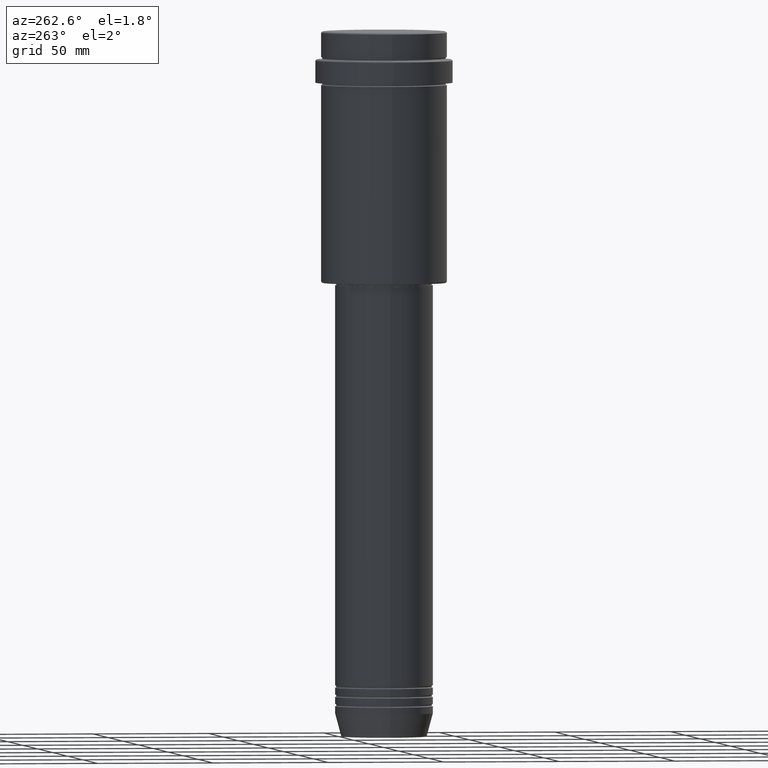
[diagram: clean part render]
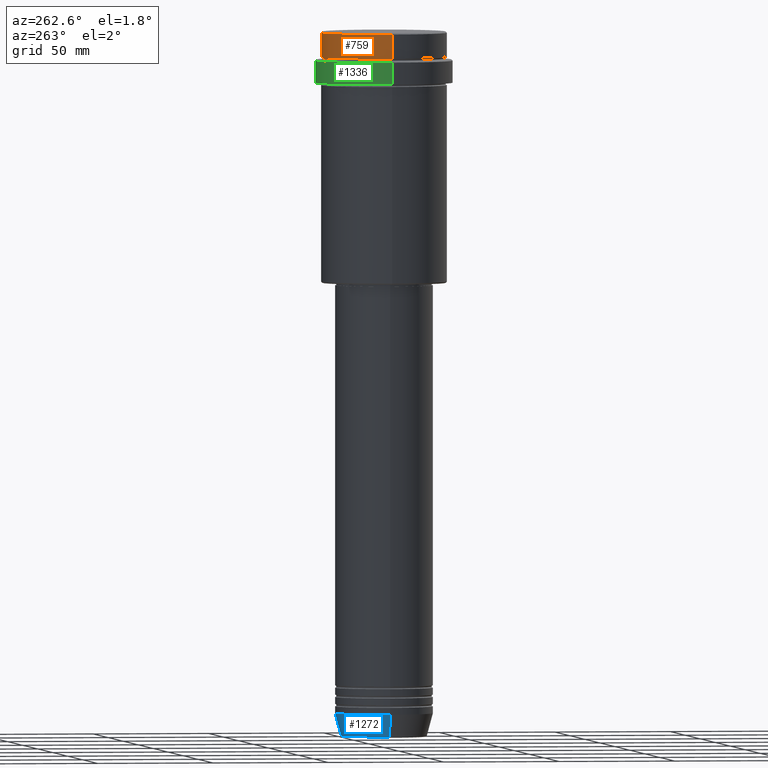
[diagram: same view with three faces highlighted in distinct colors, each labeled with its STEP entity id]
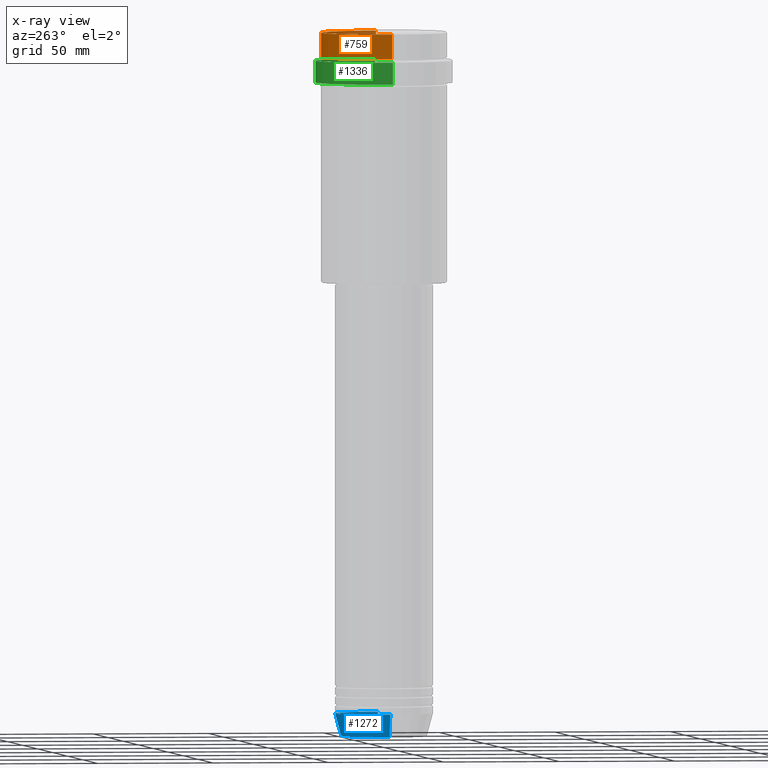
[diagram: x-ray of the same camera — body ghosted, the three highlighted faces saturated]
A machine part, auxiliary view with three faces highlighted in distinct colors.
The next image is the same camera in x-ray (body ghosted, the three faces saturated) — at least one of them is partly hidden behind the body in this view.
Their STEP definitions:

[orange] entity #759 — the highlighted cylindrical surface (partial cylindrical patch) has radius 27 mm, axis along (-0, -0, 1).
#26 = CARTESIAN_POINT ( 'NONE',  ( 27.00000000000000355, 0.000000000000000000, -11.00000000000000178 ) ) ;
#146 = ORIENTED_EDGE ( 'NONE', *, *, #608, .T. ) ;
#196 = EDGE_CURVE ( 'NONE', #1349, #633, #875, .T. ) ;
#207 = CARTESIAN_POINT ( 'NONE',  ( 0.000000000000000000, 0.000000000000000000, 0.000000000000000000 ) ) ;
#265 = DIRECTION ( 'NONE',  ( 1.000000000000000000, 0.000000000000000000, 0.000000000000000000 ) ) ;
#343 = VERTEX_POINT ( 'NONE', #520 ) ;
#347 = EDGE_LOOP ( 'NONE', ( #146, #910, #418, #699 ) ) ;
#359 = EDGE_CURVE ( 'NONE', #343, #1349, #1406, .T. ) ;
#377 = CARTESIAN_POINT ( 'NONE',  ( 0.000000000000000000, 0.000000000000000000, -11.00000000000000178 ) ) ;
#390 = DIRECTION ( 'NONE',  ( -0.000000000000000000, -0.000000000000000000, 1.000000000000000000 ) ) ;
#418 = ORIENTED_EDGE ( 'NONE', *, *, #196, .T. ) ;
#433 = DIRECTION ( 'NONE',  ( -0.000000000000000000, -0.000000000000000000, 1.000000000000000000 ) ) ;
#520 = CARTESIAN_POINT ( 'NONE',  ( -27.00000000000000355, 3.306546357697854128E-15, -11.00000000000000178 ) ) ;
#598 = CARTESIAN_POINT ( 'NONE',  ( 27.00000000000000355, 0.000000000000000000, -0.5000000000000073275 ) ) ;
#607 = CIRCLE ( 'NONE', #937, 27.00000000000000355 ) ;
#608 = EDGE_CURVE ( 'NONE', #645, #343, #607, .T. ) ;
#633 = VERTEX_POINT ( 'NONE', #598 ) ;
#645 = VERTEX_POINT ( 'NONE', #26 ) ;
#699 = ORIENTED_EDGE ( 'NONE', *, *, #1103, .F. ) ;
#759 = ADVANCED_FACE ( 'NONE', ( #1054 ), #1067, .T. ) ;
#763 = DIRECTION ( 'NONE',  ( -0.000000000000000000, -0.000000000000000000, 1.000000000000000000 ) ) ;
#804 = LINE ( 'NONE', #1357, #826 ) ;
#825 = CARTESIAN_POINT ( 'NONE',  ( 0.000000000000000000, 0.000000000000000000, -0.5000000000000073275 ) ) ;
#826 = VECTOR ( 'NONE', #390, 1000.000000000000000 ) ;
#875 = CIRCLE ( 'NONE', #1282, 27.00000000000000355 ) ;
#890 = VECTOR ( 'NONE', #763, 1000.000000000000000 ) ;
#910 = ORIENTED_EDGE ( 'NONE', *, *, #359, .T. ) ;
#937 = AXIS2_PLACEMENT_3D ( 'NONE', #377, #1238, #265 ) ;
#949 = DIRECTION ( 'NONE',  ( 1.000000000000000000, 0.000000000000000000, 0.000000000000000000 ) ) ;
#1054 = FACE_OUTER_BOUND ( 'NONE', #347, .T. ) ;
#1067 = CYLINDRICAL_SURFACE ( 'NONE', #1367, 27.00000000000000355 ) ;
#1103 = EDGE_CURVE ( 'NONE', #645, #633, #804, .T. ) ;
#1134 = DIRECTION ( 'NONE',  ( 1.000000000000000000, 0.000000000000000000, 0.000000000000000000 ) ) ;
#1238 = DIRECTION ( 'NONE',  ( -0.000000000000000000, -0.000000000000000000, 1.000000000000000000 ) ) ;
#1282 = AXIS2_PLACEMENT_3D ( 'NONE', #825, #1361, #1134 ) ;
#1294 = CARTESIAN_POINT ( 'NONE',  ( -27.00000000000000355, 3.306546357697854128E-15, 0.000000000000000000 ) ) ;
#1309 = CARTESIAN_POINT ( 'NONE',  ( -27.00000000000000355, 3.306546357697854128E-15, -0.5000000000000073275 ) ) ;
#1349 = VERTEX_POINT ( 'NONE', #1309 ) ;
#1357 = CARTESIAN_POINT ( 'NONE',  ( 27.00000000000000355, 0.000000000000000000, 0.000000000000000000 ) ) ;
#1361 = DIRECTION ( 'NONE',  ( 0.000000000000000000, 0.000000000000000000, -1.000000000000000000 ) ) ;
#1367 = AXIS2_PLACEMENT_3D ( 'NONE', #207, #433, #949 ) ;
#1406 = LINE ( 'NONE', #1294, #890 ) ;

[blue] entity #1272 — the highlighted conical surface has half-angle 15 deg.
#56 = FACE_OUTER_BOUND ( 'NONE', #252, .T. ) ;
#78 = CARTESIAN_POINT ( 'NONE',  ( 0.000000000000000000, 0.000000000000000000, -302.6294095225512706 ) ) ;
#101 = AXIS2_PLACEMENT_3D ( 'NONE', #1363, #1369, #523 ) ;
#158 = DIRECTION ( 'NONE',  ( -0.2588190451025211836, 3.169619151431770488E-17, 0.9659258262890680902 ) ) ;
#169 = CARTESIAN_POINT ( 'NONE',  ( 21.00000000000000000, 0.000000000000000000, -293.0000000000000568 ) ) ;
#252 = EDGE_LOOP ( 'NONE', ( #631, #1071, #1081, #1246 ) ) ;
#292 = EDGE_CURVE ( 'NONE', #1269, #416, #872, .T. ) ;
#298 = CARTESIAN_POINT ( 'NONE',  ( 18.41980749484383750, 0.000000000000000000, -302.6294095225512706 ) ) ;
#345 = LINE ( 'NONE', #169, #1209 ) ;
#416 = VERTEX_POINT ( 'NONE', #897 ) ;
#432 = CONICAL_SURFACE ( 'NONE', #498, 21.00000000000000000, 0.2617993877991499074 ) ;
#453 = CARTESIAN_POINT ( 'NONE',  ( 21.00000000000000000, 0.000000000000000000, -293.0000000000000568 ) ) ;
#498 = AXIS2_PLACEMENT_3D ( 'NONE', #752, #505, #936 ) ;
#505 = DIRECTION ( 'NONE',  ( -0.000000000000000000, -0.000000000000000000, 1.000000000000000000 ) ) ;
#523 = DIRECTION ( 'NONE',  ( 1.000000000000000000, 0.000000000000000000, 0.000000000000000000 ) ) ;
#570 = EDGE_CURVE ( 'NONE', #1269, #862, #345, .T. ) ;
#579 = CARTESIAN_POINT ( 'NONE',  ( -21.00000000000000000, 2.571758278209441661E-15, -293.0000000000000568 ) ) ;
#631 = ORIENTED_EDGE ( 'NONE', *, *, #292, .T. ) ;
#635 = CARTESIAN_POINT ( 'NONE',  ( -21.00000000000000000, 2.571758278209441661E-15, -293.0000000000000568 ) ) ;
#704 = VERTEX_POINT ( 'NONE', #635 ) ;
#719 = AXIS2_PLACEMENT_3D ( 'NONE', #78, #955, #1159 ) ;
#752 = CARTESIAN_POINT ( 'NONE',  ( 0.000000000000000000, 0.000000000000000000, -293.0000000000000568 ) ) ;
#862 = VERTEX_POINT ( 'NONE', #453 ) ;
#872 = CIRCLE ( 'NONE', #719, 18.41980749484383750 ) ;
#897 = CARTESIAN_POINT ( 'NONE',  ( -18.41980749484383750, 2.413767053578267458E-15, -302.6294095225512706 ) ) ;
#936 = DIRECTION ( 'NONE',  ( 1.000000000000000000, 0.000000000000000000, 0.000000000000000000 ) ) ;
#955 = DIRECTION ( 'NONE',  ( -0.000000000000000000, -0.000000000000000000, 1.000000000000000000 ) ) ;
#1022 = EDGE_CURVE ( 'NONE', #416, #704, #1350, .T. ) ;
#1071 = ORIENTED_EDGE ( 'NONE', *, *, #1022, .T. ) ;
#1081 = ORIENTED_EDGE ( 'NONE', *, *, #1283, .F. ) ;
#1138 = DIRECTION ( 'NONE',  ( 0.2588190451025211836, 0.000000000000000000, 0.9659258262890680902 ) ) ;
#1159 = DIRECTION ( 'NONE',  ( 1.000000000000000000, 0.000000000000000000, 0.000000000000000000 ) ) ;
#1209 = VECTOR ( 'NONE', #1138, 1000.000000000000114 ) ;
#1246 = ORIENTED_EDGE ( 'NONE', *, *, #570, .F. ) ;
#1269 = VERTEX_POINT ( 'NONE', #298 ) ;
#1272 = ADVANCED_FACE ( 'NONE', ( #56 ), #432, .T. ) ;
#1283 = EDGE_CURVE ( 'NONE', #862, #704, #1397, .T. ) ;
#1350 = LINE ( 'NONE', #579, #1393 ) ;
#1363 = CARTESIAN_POINT ( 'NONE',  ( 0.000000000000000000, 0.000000000000000000, -293.0000000000000568 ) ) ;
#1369 = DIRECTION ( 'NONE',  ( -0.000000000000000000, -0.000000000000000000, 1.000000000000000000 ) ) ;
#1393 = VECTOR ( 'NONE', #158, 1000.000000000000114 ) ;
#1397 = CIRCLE ( 'NONE', #101, 21.00000000000000000 ) ;

[green] entity #1336 — the highlighted cylindrical surface (partial cylindrical patch) has radius 29.5 mm, axis along (-0, -0, 1).
#64 = DIRECTION ( 'NONE',  ( -0.000000000000000000, -0.000000000000000000, 1.000000000000000000 ) ) ;
#92 = CYLINDRICAL_SURFACE ( 'NONE', #1170, 29.50000000000000000 ) ;
#181 = DIRECTION ( 'NONE',  ( -0.000000000000000000, -0.000000000000000000, 1.000000000000000000 ) ) ;
#247 = EDGE_LOOP ( 'NONE', ( #647, #904, #1242, #803 ) ) ;
#255 = CARTESIAN_POINT ( 'NONE',  ( 29.50000000000000000, 0.000000000000000000, -12.50000000000000355 ) ) ;
#299 = LINE ( 'NONE', #1049, #1391 ) ;
#311 = AXIS2_PLACEMENT_3D ( 'NONE', #1178, #409, #1265 ) ;
#384 = CIRCLE ( 'NONE', #746, 29.49999999999999645 ) ;
#409 = DIRECTION ( 'NONE',  ( 0.000000000000000000, 0.000000000000000000, -1.000000000000000000 ) ) ;
#457 = VERTEX_POINT ( 'NONE', #1201 ) ;
#517 = VERTEX_POINT ( 'NONE', #574 ) ;
#548 = DIRECTION ( 'NONE',  ( -0.000000000000000000, -0.000000000000000000, 1.000000000000000000 ) ) ;
#574 = CARTESIAN_POINT ( 'NONE',  ( -29.49999999999999645, 3.612708057484690815E-15, -22.00000000000000711 ) ) ;
#586 = CIRCLE ( 'NONE', #311, 29.50000000000000000 ) ;
#600 = VERTEX_POINT ( 'NONE', #255 ) ;
#647 = ORIENTED_EDGE ( 'NONE', *, *, #1315, .T. ) ;
#650 = EDGE_CURVE ( 'NONE', #517, #885, #919, .T. ) ;
#671 = FACE_OUTER_BOUND ( 'NONE', #247, .T. ) ;
#732 = CARTESIAN_POINT ( 'NONE',  ( 0.000000000000000000, 0.000000000000000000, -22.00000000000000711 ) ) ;
#746 = AXIS2_PLACEMENT_3D ( 'NONE', #732, #181, #1157 ) ;
#803 = ORIENTED_EDGE ( 'NONE', *, *, #812, .F. ) ;
#812 = EDGE_CURVE ( 'NONE', #457, #600, #299, .T. ) ;
#885 = VERTEX_POINT ( 'NONE', #887 ) ;
#887 = CARTESIAN_POINT ( 'NONE',  ( -29.50000000000000000, 3.612708057484691604E-15, -12.50000000000000355 ) ) ;
#904 = ORIENTED_EDGE ( 'NONE', *, *, #650, .T. ) ;
#919 = LINE ( 'NONE', #1043, #1075 ) ;
#1043 = CARTESIAN_POINT ( 'NONE',  ( -29.50000000000000000, 3.612708057484691604E-15, 0.000000000000000000 ) ) ;
#1049 = CARTESIAN_POINT ( 'NONE',  ( 29.50000000000000000, 0.000000000000000000, 0.000000000000000000 ) ) ;
#1075 = VECTOR ( 'NONE', #1113, 1000.000000000000000 ) ;
#1113 = DIRECTION ( 'NONE',  ( -0.000000000000000000, -0.000000000000000000, 1.000000000000000000 ) ) ;
#1157 = DIRECTION ( 'NONE',  ( 1.000000000000000000, 0.000000000000000000, 0.000000000000000000 ) ) ;
#1170 = AXIS2_PLACEMENT_3D ( 'NONE', #1400, #548, #1193 ) ;
#1178 = CARTESIAN_POINT ( 'NONE',  ( 0.000000000000000000, 0.000000000000000000, -12.50000000000000355 ) ) ;
#1193 = DIRECTION ( 'NONE',  ( 1.000000000000000000, 0.000000000000000000, 0.000000000000000000 ) ) ;
#1201 = CARTESIAN_POINT ( 'NONE',  ( 29.49999999999999645, 0.000000000000000000, -22.00000000000000711 ) ) ;
#1242 = ORIENTED_EDGE ( 'NONE', *, *, #1312, .T. ) ;
#1265 = DIRECTION ( 'NONE',  ( 1.000000000000000000, 0.000000000000000000, 0.000000000000000000 ) ) ;
#1312 = EDGE_CURVE ( 'NONE', #885, #600, #586, .T. ) ;
#1315 = EDGE_CURVE ( 'NONE', #457, #517, #384, .T. ) ;
#1336 = ADVANCED_FACE ( 'NONE', ( #671 ), #92, .T. ) ;
#1391 = VECTOR ( 'NONE', #64, 1000.000000000000000 ) ;
#1400 = CARTESIAN_POINT ( 'NONE',  ( 0.000000000000000000, 0.000000000000000000, 0.000000000000000000 ) ) ;